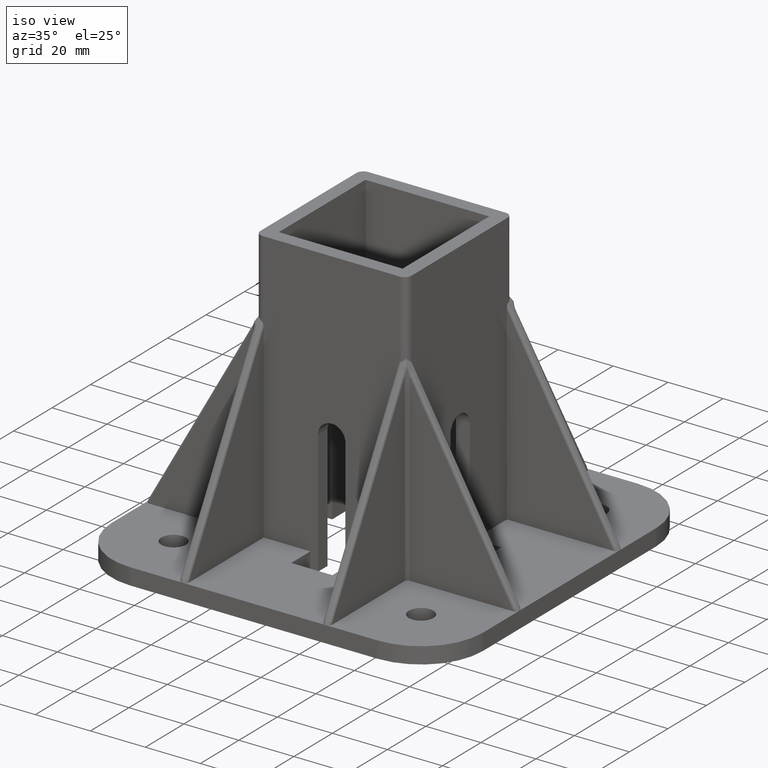
[diagram: clean part render]
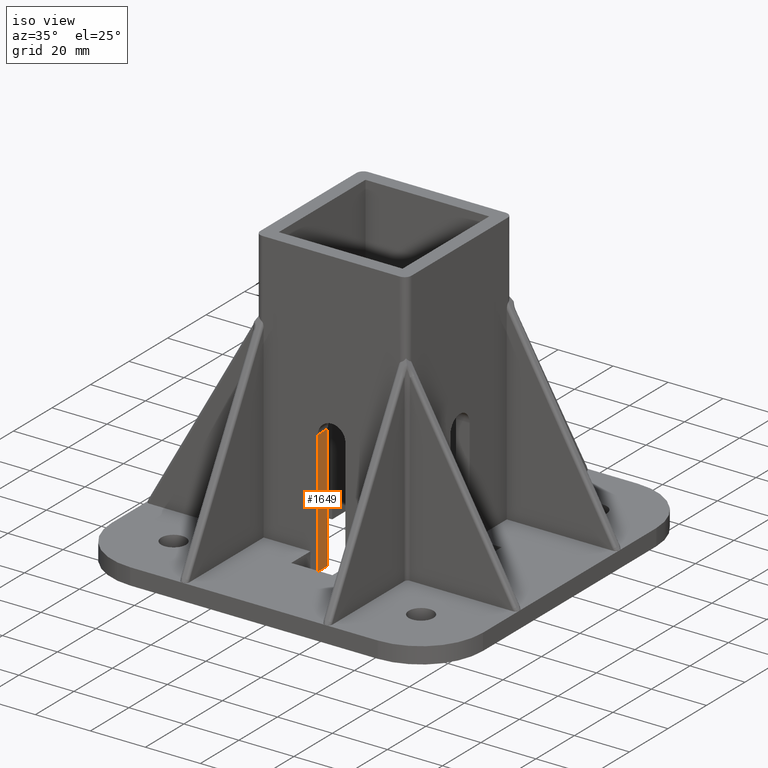
[diagram: same view with one face highlighted and labeled with its STEP entity id]
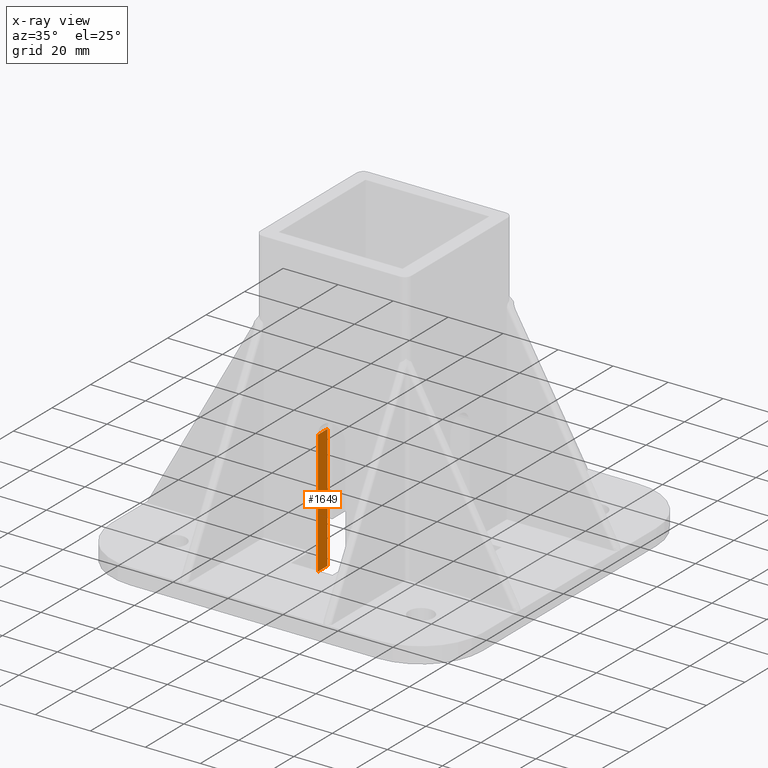
[diagram: x-ray of the same camera — body ghosted, the highlighted face saturated]
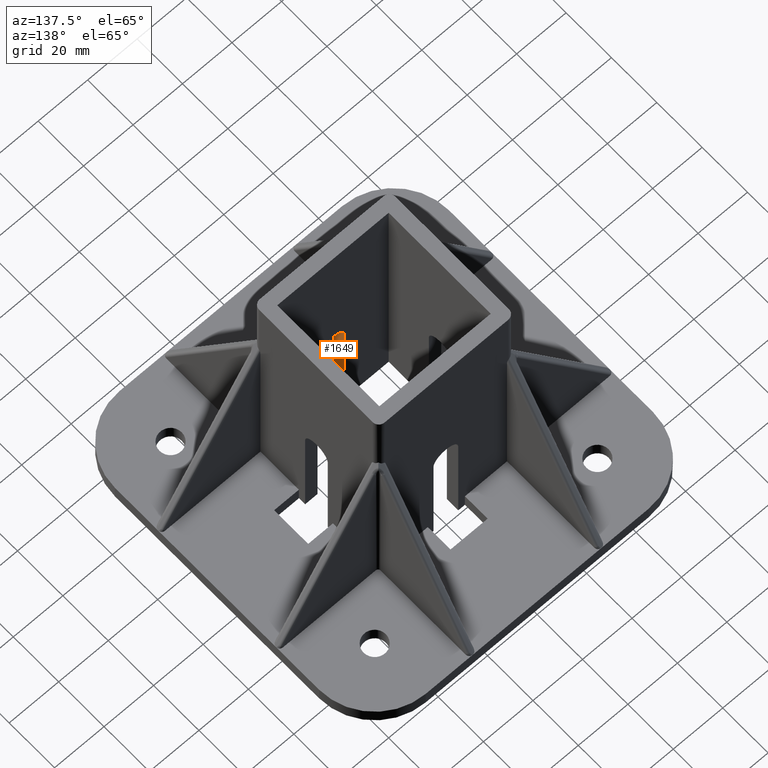
[diagram: same view with one face highlighted and labeled with its STEP entity id]
A machine part, iso view. The second image highlights one B-rep face of the part: STEP entity #1649.
The next image is the same camera in x-ray: the body ghosted, the highlighted face saturated — about 0% of this face is hidden behind the body in this view.
A second angle (auxiliary view) of the same face is appended — the face is thin or edge-on in the first view.
In plain terms, the highlighted planar face has unit normal (1, 0, 0).
Its self-contained STEP definition (entity closure, byte-faithful):
#431=CARTESIAN_POINT('',(-4.785230846259253,-89.999819999640295,0.0));
#432=VERTEX_POINT('',#431);
#439=CARTESIAN_POINT('',(-4.785230846259253,-94.999809999620084,0.0));
#440=VERTEX_POINT('',#439);
#441=CARTESIAN_POINT('',(-4.785230846259253,-94.999809999620084,0.0));
#442=DIRECTION('',(0.0,1.0,0.0));
#443=VECTOR('',#442,4.999989999979789);
#444=LINE('',#441,#443);
#445=EDGE_CURVE('',#440,#432,#444,.T.);
#1290=CARTESIAN_POINT('',(-4.785230846259253,-89.999819999640295,45.050000190734863));
#1291=VERTEX_POINT('',#1290);
#1299=CARTESIAN_POINT('',(-4.785230846259253,-89.999819999640295,0.0));
#1300=DIRECTION('',(0.0,0.0,1.0));
#1301=VECTOR('',#1300,45.050000190734863);
#1302=LINE('',#1299,#1301);
#1303=EDGE_CURVE('',#432,#1291,#1302,.T.);
#1328=CARTESIAN_POINT('',(-4.785230846259253,-94.999809999620112,45.050000190734863));
#1329=VERTEX_POINT('',#1328);
#1330=CARTESIAN_POINT('',(-4.785230846259253,-94.999809999620112,45.050000190734863));
#1331=DIRECTION('',(0.0,1.0,0.0));
#1332=VECTOR('',#1331,4.999989999979817);
#1333=LINE('',#1330,#1332);
#1334=EDGE_CURVE('',#1329,#1291,#1333,.T.);
#1633=CARTESIAN_POINT('',(-4.785230846259253,-94.999809999620084,0.0));
#1634=DIRECTION('',(1.0,0.0,0.0));
#1635=DIRECTION('',(0.0,1.0,0.0));
#1636=AXIS2_PLACEMENT_3D('',#1633,#1634,#1635);
#1637=PLANE('',#1636);
#1638=ORIENTED_EDGE('',*,*,#445,.T.);
#1639=ORIENTED_EDGE('',*,*,#1303,.T.);
#1640=ORIENTED_EDGE('',*,*,#1334,.F.);
#1641=CARTESIAN_POINT('',(-4.785230846259253,-94.999809999620084,0.0));
#1642=DIRECTION('',(0.0,0.0,1.0));
#1643=VECTOR('',#1642,45.050000190734863);
#1644=LINE('',#1641,#1643);
#1645=EDGE_CURVE('',#440,#1329,#1644,.T.);
#1646=ORIENTED_EDGE('',*,*,#1645,.F.);
#1647=EDGE_LOOP('',(#1638,#1639,#1640,#1646));
#1648=FACE_OUTER_BOUND('',#1647,.T.);
#1649=ADVANCED_FACE('',(#1648),#1637,.T.);